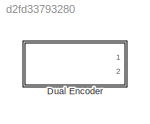
MODEL slx_d2fd33793280
KIND model
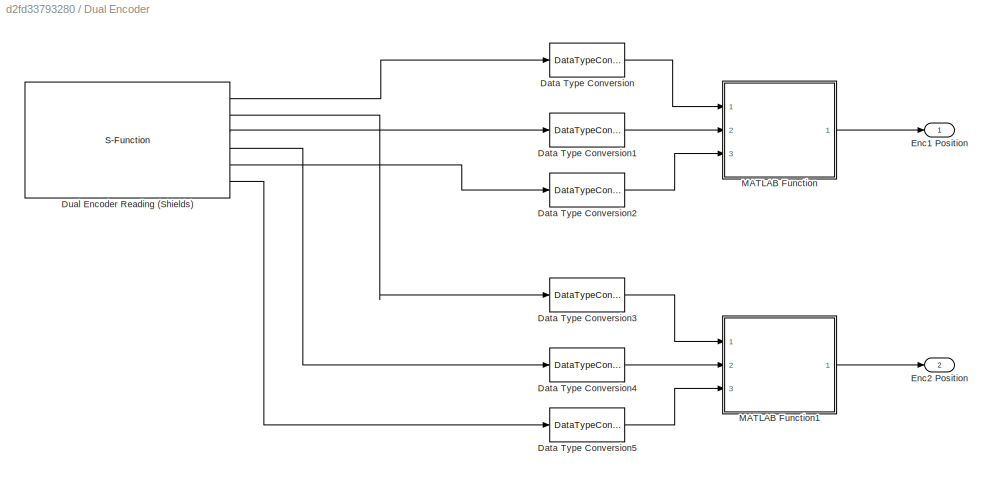
BLOCK [SubSystem] Dual Encoder
  FunctionWithSeparateData = off
  MaskHideContents = off
  MinAlgLoopOccurrences = off
  Opaque = off
  Ports = [0, 2]
  PropExecContextOutsideSubsystem = off
  RTWSystemCode = Auto
  RequestExecContextInheritance = off
BLOCK [DataTypeConversion] Dual Encoder/Data Type Conversion
  OutDataTypeStr = double
  RndMeth = Floor
  SaturateOnIntegerOverflow = off
BLOCK [DataTypeConversion] Dual Encoder/Data Type Conversion1
  OutDataTypeStr = double
  RndMeth = Floor
  SaturateOnIntegerOverflow = off
BLOCK [DataTypeConversion] Dual Encoder/Data Type Conversion2
  OutDataTypeStr = double
  RndMeth = Floor
  SaturateOnIntegerOverflow = off
BLOCK [DataTypeConversion] Dual Encoder/Data Type Conversion3
  OutDataTypeStr = double
  RndMeth = Floor
  SaturateOnIntegerOverflow = off
BLOCK [DataTypeConversion] Dual Encoder/Data Type Conversion4
  OutDataTypeStr = double
  RndMeth = Floor
  SaturateOnIntegerOverflow = off
BLOCK [DataTypeConversion] Dual Encoder/Data Type Conversion5
  OutDataTypeStr = double
  RndMeth = Floor
  SaturateOnIntegerOverflow = off
BLOCK [S-Function] Dual Encoder/Dual Encoder Reading (Shields)
  CopyFcn = set_param(gcbh,'LinkStatus','none')
  EnableBusSupport = off
  FunctionName = sf_QuadEncoder_18_19_20_21
  InitFcn = try, set_param(gcb,'FunctionName','sf_QuadEncoder_18_19_20_21'), end
  OpenFcn = sfunctionwizard(gcbh)
  Parameters = uint8([0 1]),uint8([18 20]),uint8([19 21])
  Ports = [0, 6]
  PreSaveFcn = try, set_param(gcb,'FunctionName','sf_QuadEncoder_18_19_20_21'), end
  SFunctionModules = sf_QuadEncoder_18_19_20_21_wrapper
BLOCK [Outport] Dual Encoder/Enc1 Position
  IconDisplay = Port number
BLOCK [Outport] Dual Encoder/Enc2 Position
  IconDisplay = Port number
  Port = 2
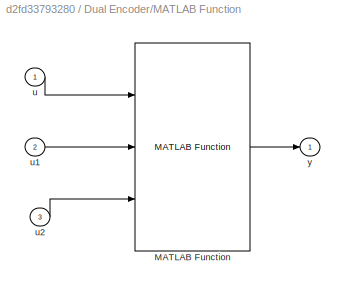
BLOCK [SubSystem] Dual Encoder/MATLAB Function
  ErrorFcn = Stateflow.Translate.translate
  FunctionWithSeparateData = off
  MaskHideContents = off
  MinAlgLoopOccurrences = off
  Opaque = off
  PermitHierarchicalResolution = ExplicitOnly
  Ports = [3, 1]
  PropExecContextOutsideSubsystem = off
  RTWSystemCode = Auto
  RequestExecContextInheritance = off
  TreatAsAtomicUnit = on
BLOCK [Reference] Dual Encoder/MATLAB Function/MATLAB Function  REF=CSLlib/QuadEncoder/MATLAB Function
  Ports = [3, 1]
  SourceBlock = CSLlib/QuadEncoder/MATLAB Function
  SourceType = SubSystem
BLOCK [Inport] Dual Encoder/MATLAB Function/u
  IconDisplay = Port number
BLOCK [Inport] Dual Encoder/MATLAB Function/u1
  IconDisplay = Port number
  Port = 2
BLOCK [Inport] Dual Encoder/MATLAB Function/u2
  IconDisplay = Port number
  Port = 3
BLOCK [Outport] Dual Encoder/MATLAB Function/y
  IconDisplay = Port number
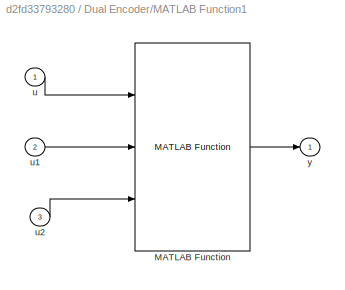
BLOCK [SubSystem] Dual Encoder/MATLAB Function1
  ErrorFcn = Stateflow.Translate.translate
  FunctionWithSeparateData = off
  MaskHideContents = off
  MinAlgLoopOccurrences = off
  Opaque = off
  PermitHierarchicalResolution = ExplicitOnly
  Ports = [3, 1]
  PropExecContextOutsideSubsystem = off
  RTWSystemCode = Auto
  RequestExecContextInheritance = off
  TreatAsAtomicUnit = on
BLOCK [Reference] Dual Encoder/MATLAB Function1/MATLAB Function  REF=CSLlib/QuadEncoder/MATLAB Function
  Ports = [3, 1]
  SourceBlock = CSLlib/QuadEncoder/MATLAB Function
  SourceType = SubSystem
BLOCK [Inport] Dual Encoder/MATLAB Function1/u
  IconDisplay = Port number
BLOCK [Inport] Dual Encoder/MATLAB Function1/u1
  IconDisplay = Port number
  Port = 2
BLOCK [Inport] Dual Encoder/MATLAB Function1/u2
  IconDisplay = Port number
  Port = 3
BLOCK [Outport] Dual Encoder/MATLAB Function1/y
  IconDisplay = Port number
LINE Dual Encoder/Data Type Conversion1:1 -> Dual Encoder/MATLAB Function:2
LINE Dual Encoder/Data Type Conversion2:1 -> Dual Encoder/MATLAB Function:3
LINE Dual Encoder/Data Type Conversion3:1 -> Dual Encoder/MATLAB Function1:1
LINE Dual Encoder/Data Type Conversion4:1 -> Dual Encoder/MATLAB Function1:2
LINE Dual Encoder/Data Type Conversion5:1 -> Dual Encoder/MATLAB Function1:3
LINE Dual Encoder/Data Type Conversion:1 -> Dual Encoder/MATLAB Function:1
LINE Dual Encoder/Dual Encoder Reading (Shields):1 -> Dual Encoder/Data Type Conversion:1
LINE Dual Encoder/Dual Encoder Reading (Shields):2 -> Dual Encoder/Data Type Conversion3:1
LINE Dual Encoder/Dual Encoder Reading (Shields):3 -> Dual Encoder/Data Type Conversion1:1
LINE Dual Encoder/Dual Encoder Reading (Shields):4 -> Dual Encoder/Data Type Conversion4:1
LINE Dual Encoder/Dual Encoder Reading (Shields):5 -> Dual Encoder/Data Type Conversion2:1
LINE Dual Encoder/Dual Encoder Reading (Shields):6 -> Dual Encoder/Data Type Conversion5:1
LINE Dual Encoder/MATLAB Function1:1 -> Dual Encoder/Enc2 Position:1
LINE Dual Encoder/MATLAB Function:1 -> Dual Encoder/Enc1 Position:1
